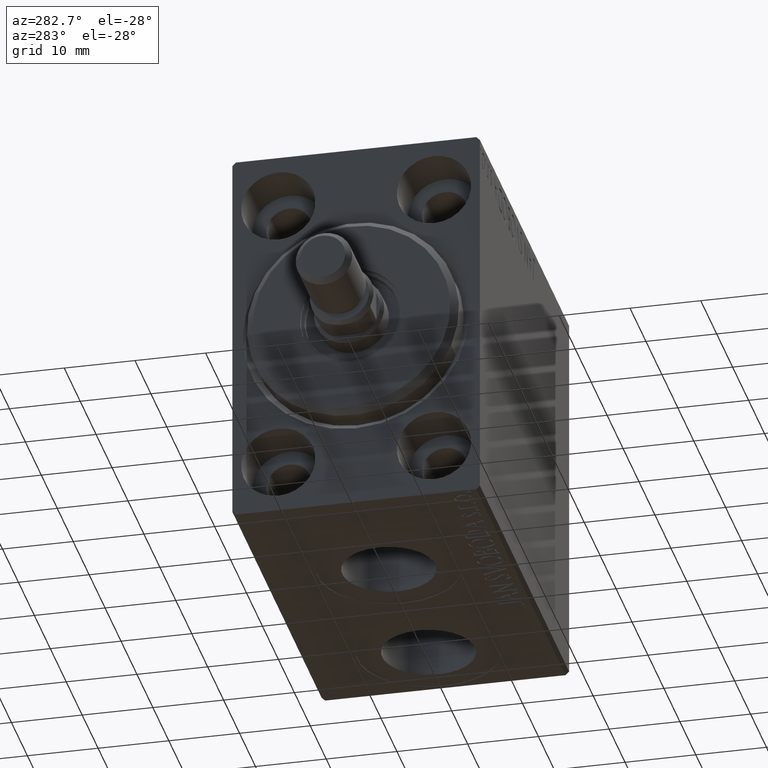
[diagram: clean part render]
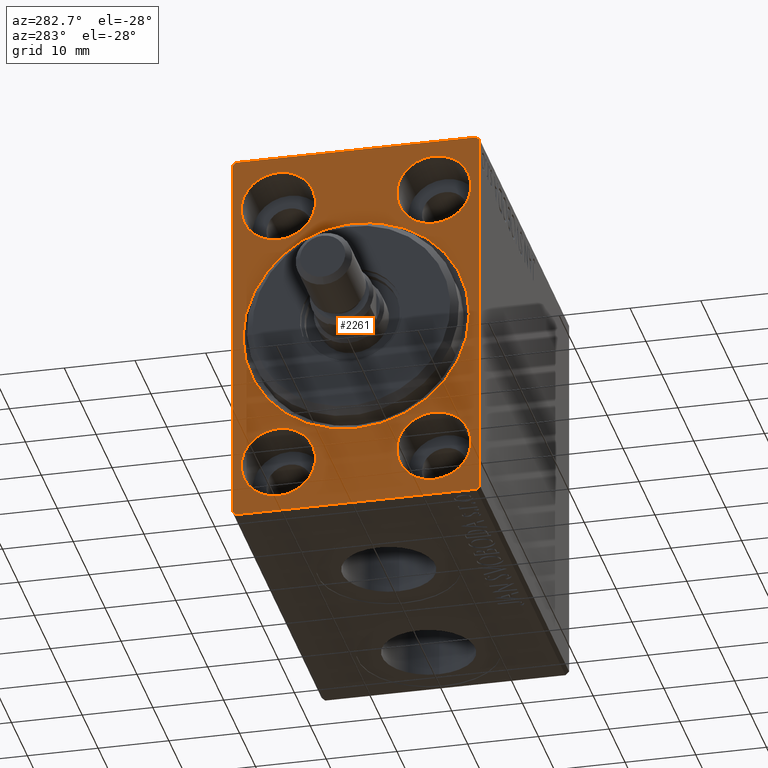
[diagram: same view with one face highlighted and labeled with its STEP entity id]
A machine part, auxiliary view. The second image highlights one B-rep face of the part: STEP entity #2261.
In plain terms, the highlighted planar face has unit normal (1, 0, 0).
Its self-contained STEP definition (entity closure, byte-faithful):
#36 = DIRECTION ( 'NONE',  ( -1.000000000000000000, 0.000000000000000000, 0.000000000000000000 ) ) ;
#77 = EDGE_LOOP ( 'NONE', ( #7892, #28040 ) ) ;
#152 = VERTEX_POINT ( 'NONE', #35269 ) ;
#344 = CARTESIAN_POINT ( 'NONE',  ( 0.000000000000000000, 11.00000000000000355, 25.25000000000000000 ) ) ;
#424 = CIRCLE ( 'NONE', #1858, 5.250000000000000888 ) ;
#1130 = CARTESIAN_POINT ( 'NONE',  ( 0.000000000000000000, 11.00000000000000355, -25.25000000000000000 ) ) ;
#1358 = ORIENTED_EDGE ( 'NONE', *, *, #43839, .T. ) ;
#1514 = LINE ( 'NONE', #5108, #15430 ) ;
#1816 = CARTESIAN_POINT ( 'NONE',  ( 0.000000000000000000, 17.50000000000000000, 26.99999999999999645 ) ) ;
#1856 = DIRECTION ( 'NONE',  ( 0.000000000000000000, 1.000000000000000000, 0.000000000000000000 ) ) ;
#1858 = AXIS2_PLACEMENT_3D ( 'NONE', #36558, #43735, #44183 ) ;
#1918 = EDGE_CURVE ( 'NONE', #3711, #13535, #41545, .T. ) ;
#2249 = EDGE_CURVE ( 'NONE', #38203, #37076, #13660, .T. ) ;
#2261 = ADVANCED_FACE ( 'NONE', ( #15786, #36733, #29527, #30187, #19596, #40777 ), #36949, .F. ) ;
#2523 = DIRECTION ( 'NONE',  ( -0.000000000000000000, 0.7071067811865474617, -0.7071067811865474617 ) ) ;
#2829 = DIRECTION ( 'NONE',  ( 0.000000000000000000, 0.000000000000000000, 1.000000000000000000 ) ) ;
#2866 = AXIS2_PLACEMENT_3D ( 'NONE', #27025, #16441, #39893 ) ;
#2890 = VECTOR ( 'NONE', #39435, 1000.000000000000114 ) ;
#3175 = VERTEX_POINT ( 'NONE', #20566 ) ;
#3711 = VERTEX_POINT ( 'NONE', #33987 ) ;
#3723 = CARTESIAN_POINT ( 'NONE',  ( 0.000000000000000000, -17.50000000000000000, 26.99999999999998934 ) ) ;
#3864 = LINE ( 'NONE', #31557, #10830 ) ;
#4059 = VERTEX_POINT ( 'NONE', #24171 ) ;
#4296 = ORIENTED_EDGE ( 'NONE', *, *, #7012, .T. ) ;
#4464 = EDGE_CURVE ( 'NONE', #3711, #4059, #3864, .T. ) ;
#4483 = CARTESIAN_POINT ( 'NONE',  ( 0.000000000000000000, 11.00000000000000355, 20.00000000000000000 ) ) ;
#5108 = CARTESIAN_POINT ( 'NONE',  ( 0.000000000000000000, -16.99999999999999289, -27.50000000000000355 ) ) ;
#5217 = ORIENTED_EDGE ( 'NONE', *, *, #23650, .F. ) ;
#5451 = LINE ( 'NONE', #18938, #11072 ) ;
#6100 = DIRECTION ( 'NONE',  ( 1.000000000000000000, 0.000000000000000000, 0.000000000000000000 ) ) ;
#6169 = ORIENTED_EDGE ( 'NONE', *, *, #41079, .F. ) ;
#6665 = EDGE_CURVE ( 'NONE', #30242, #21918, #30271, .T. ) ;
#6698 = CARTESIAN_POINT ( 'NONE',  ( 0.000000000000000000, -11.00000000000000355, 20.00000000000000000 ) ) ;
#6776 = CIRCLE ( 'NONE', #29060, 5.250000000000000888 ) ;
#6940 = AXIS2_PLACEMENT_3D ( 'NONE', #23881, #33360, #33595 ) ;
#7012 = EDGE_CURVE ( 'NONE', #37467, #30150, #36049, .T. ) ;
#7576 = CARTESIAN_POINT ( 'NONE',  ( 0.000000000000000000, 1.959434878635766709E-15, -16.00000000000001421 ) ) ;
#7767 = EDGE_CURVE ( 'NONE', #34844, #14637, #21575, .T. ) ;
#7892 = ORIENTED_EDGE ( 'NONE', *, *, #38292, .F. ) ;
#8063 = DIRECTION ( 'NONE',  ( 1.000000000000000000, 0.000000000000000000, 0.000000000000000000 ) ) ;
#8405 = DIRECTION ( 'NONE',  ( 0.000000000000000000, -1.261617073437677752E-16, 1.000000000000000000 ) ) ;
#8610 = CARTESIAN_POINT ( 'NONE',  ( 0.000000000000000000, 0.000000000000000000, 0.000000000000000000 ) ) ;
#8987 = DIRECTION ( 'NONE',  ( 0.000000000000000000, 0.000000000000000000, 1.000000000000000000 ) ) ;
#9048 = EDGE_LOOP ( 'NONE', ( #18920, #15689 ) ) ;
#9132 = ORIENTED_EDGE ( 'NONE', *, *, #34493, .F. ) ;
#9985 = ORIENTED_EDGE ( 'NONE', *, *, #19425, .F. ) ;
#10148 = CARTESIAN_POINT ( 'NONE',  ( 0.000000000000000000, 17.00000000000000711, -27.50000000000000355 ) ) ;
#10151 = CARTESIAN_POINT ( 'NONE',  ( 0.000000000000000000, -11.00000000000000355, -20.00000000000000000 ) ) ;
#10830 = VECTOR ( 'NONE', #28169, 1000.000000000000000 ) ;
#10858 = CARTESIAN_POINT ( 'NONE',  ( 0.000000000000000000, -16.99999999999999289, 27.49999999999999645 ) ) ;
#10935 = EDGE_CURVE ( 'NONE', #13245, #11777, #27426, .T. ) ;
#11072 = VECTOR ( 'NONE', #1856, 1000.000000000000000 ) ;
#11473 = CARTESIAN_POINT ( 'NONE',  ( 0.000000000000000000, -11.00000000000000355, 25.25000000000000000 ) ) ;
#11593 = ORIENTED_EDGE ( 'NONE', *, *, #16663, .T. ) ;
#11731 = AXIS2_PLACEMENT_3D ( 'NONE', #28110, #8063, #18179 ) ;
#11777 = VERTEX_POINT ( 'NONE', #7576 ) ;
#12300 = CARTESIAN_POINT ( 'NONE',  ( 0.000000000000000000, -11.00000000000000355, 14.75000000000000000 ) ) ;
#12928 = EDGE_LOOP ( 'NONE', ( #40331, #9132 ) ) ;
#13245 = VERTEX_POINT ( 'NONE', #20861 ) ;
#13535 = VERTEX_POINT ( 'NONE', #10858 ) ;
#13624 = CARTESIAN_POINT ( 'NONE',  ( 0.000000000000000000, 17.50000000000000000, 27.50000000000000355 ) ) ;
#13660 = CIRCLE ( 'NONE', #2866, 5.250000000000000888 ) ;
#13754 = DIRECTION ( 'NONE',  ( 0.000000000000000000, 0.000000000000000000, 1.000000000000000000 ) ) ;
#13849 = DIRECTION ( 'NONE',  ( -0.000000000000000000, 0.7071067811865474617, 0.7071067811865474617 ) ) ;
#14637 = VERTEX_POINT ( 'NONE', #1130 ) ;
#14715 = DIRECTION ( 'NONE',  ( 0.000000000000000000, 0.000000000000000000, 1.000000000000000000 ) ) ;
#15430 = VECTOR ( 'NONE', #32809, 1000.000000000000114 ) ;
#15466 = CIRCLE ( 'NONE', #6940, 5.250000000000000888 ) ;
#15514 = CARTESIAN_POINT ( 'NONE',  ( 0.000000000000000000, -11.00000000000000355, -20.00000000000000000 ) ) ;
#15689 = ORIENTED_EDGE ( 'NONE', *, *, #37766, .F. ) ;
#15786 = FACE_BOUND ( 'NONE', #28190, .T. ) ;
#15807 = DIRECTION ( 'NONE',  ( 1.000000000000000000, 0.000000000000000000, 0.000000000000000000 ) ) ;
#16441 = DIRECTION ( 'NONE',  ( -1.000000000000000000, 0.000000000000000000, 0.000000000000000000 ) ) ;
#16628 = AXIS2_PLACEMENT_3D ( 'NONE', #8610, #15807, #43278 ) ;
#16663 = EDGE_CURVE ( 'NONE', #11777, #13245, #29716, .T. ) ;
#17249 = AXIS2_PLACEMENT_3D ( 'NONE', #33343, #6100, #33576 ) ;
#17386 = VERTEX_POINT ( 'NONE', #1816 ) ;
#17655 = AXIS2_PLACEMENT_3D ( 'NONE', #4483, #42735, #21580 ) ;
#18114 = EDGE_LOOP ( 'NONE', ( #35181, #41710, #9985, #1358, #39130, #4296, #5217, #19378 ) ) ;
#18179 = DIRECTION ( 'NONE',  ( 0.000000000000000000, 0.000000000000000000, -1.000000000000000000 ) ) ;
#18920 = ORIENTED_EDGE ( 'NONE', *, *, #7767, .F. ) ;
#18938 = CARTESIAN_POINT ( 'NONE',  ( 0.000000000000000000, -17.50000000000000000, -27.50000000000000355 ) ) ;
#19378 = ORIENTED_EDGE ( 'NONE', *, *, #21171, .T. ) ;
#19425 = EDGE_CURVE ( 'NONE', #3175, #13535, #37950, .T. ) ;
#19596 = FACE_BOUND ( 'NONE', #12928, .T. ) ;
#20566 = CARTESIAN_POINT ( 'NONE',  ( 0.000000000000000000, 16.99999999999999289, 27.50000000000000355 ) ) ;
#20861 = CARTESIAN_POINT ( 'NONE',  ( 0.000000000000000000, 0.000000000000000000, 16.00000000000001421 ) ) ;
#21171 = EDGE_CURVE ( 'NONE', #152, #4059, #1514, .T. ) ;
#21575 = CIRCLE ( 'NONE', #30201, 5.250000000000000888 ) ;
#21580 = DIRECTION ( 'NONE',  ( 0.000000000000000000, 0.000000000000000000, 1.000000000000000000 ) ) ;
#21893 = LINE ( 'NONE', #25947, #32766 ) ;
#21910 = CIRCLE ( 'NONE', #40606, 5.250000000000000888 ) ;
#21918 = VERTEX_POINT ( 'NONE', #12300 ) ;
#22511 = CARTESIAN_POINT ( 'NONE',  ( 0.000000000000000000, 17.50000000000000711, -27.00000000000000355 ) ) ;
#22928 = DIRECTION ( 'NONE',  ( -1.000000000000000000, 0.000000000000000000, 0.000000000000000000 ) ) ;
#23650 = EDGE_CURVE ( 'NONE', #152, #30150, #5451, .T. ) ;
#23782 = ORIENTED_EDGE ( 'NONE', *, *, #10935, .T. ) ;
#23881 = CARTESIAN_POINT ( 'NONE',  ( 0.000000000000000000, -11.00000000000000355, 20.00000000000000000 ) ) ;
#24171 = CARTESIAN_POINT ( 'NONE',  ( 0.000000000000000000, -17.50000000000000000, -26.99999999999999645 ) ) ;
#25830 = EDGE_CURVE ( 'NONE', #40115, #26320, #21910, .T. ) ;
#25947 = CARTESIAN_POINT ( 'NONE',  ( 0.000000000000000000, 17.50000000000000711, -27.50000000000000355 ) ) ;
#26320 = VERTEX_POINT ( 'NONE', #32084 ) ;
#27025 = CARTESIAN_POINT ( 'NONE',  ( 0.000000000000000000, 11.00000000000000355, 20.00000000000000000 ) ) ;
#27426 = CIRCLE ( 'NONE', #16628, 16.00000000000001421 ) ;
#27467 = EDGE_CURVE ( 'NONE', #37467, #17386, #21893, .T. ) ;
#28040 = ORIENTED_EDGE ( 'NONE', *, *, #2249, .F. ) ;
#28110 = CARTESIAN_POINT ( 'NONE',  ( 0.000000000000000000, 0.000000000000000000, 0.000000000000000000 ) ) ;
#28169 = DIRECTION ( 'NONE',  ( 0.000000000000000000, 0.000000000000000000, -1.000000000000000000 ) ) ;
#28190 = EDGE_LOOP ( 'NONE', ( #23782, #11593 ) ) ;
#28971 = ORIENTED_EDGE ( 'NONE', *, *, #6665, .F. ) ;
#29060 = AXIS2_PLACEMENT_3D ( 'NONE', #10151, #36, #13754 ) ;
#29527 = FACE_BOUND ( 'NONE', #44150, .T. ) ;
#29716 = CIRCLE ( 'NONE', #11731, 16.00000000000001421 ) ;
#30150 = VERTEX_POINT ( 'NONE', #10148 ) ;
#30187 = FACE_BOUND ( 'NONE', #77, .T. ) ;
#30201 = AXIS2_PLACEMENT_3D ( 'NONE', #33003, #36609, #2829 ) ;
#30242 = VERTEX_POINT ( 'NONE', #11473 ) ;
#30271 = CIRCLE ( 'NONE', #38192, 5.250000000000000888 ) ;
#31557 = CARTESIAN_POINT ( 'NONE',  ( 0.000000000000000000, -17.50000000000000000, 27.49999999999999645 ) ) ;
#32064 = VECTOR ( 'NONE', #2523, 1000.000000000000114 ) ;
#32084 = CARTESIAN_POINT ( 'NONE',  ( 0.000000000000000000, -11.00000000000000355, -25.25000000000000000 ) ) ;
#32766 = VECTOR ( 'NONE', #8405, 1000.000000000000000 ) ;
#32809 = DIRECTION ( 'NONE',  ( -0.000000000000000000, -0.7071067811865474617, 0.7071067811865474617 ) ) ;
#33003 = CARTESIAN_POINT ( 'NONE',  ( 0.000000000000000000, 11.00000000000000355, -20.00000000000000000 ) ) ;
#33343 = CARTESIAN_POINT ( 'NONE',  ( 0.000000000000000000, 0.000000000000000000, 0.000000000000000000 ) ) ;
#33360 = DIRECTION ( 'NONE',  ( -1.000000000000000000, 0.000000000000000000, 0.000000000000000000 ) ) ;
#33576 = DIRECTION ( 'NONE',  ( 0.000000000000000000, 0.000000000000000000, -1.000000000000000000 ) ) ;
#33595 = DIRECTION ( 'NONE',  ( 0.000000000000000000, 0.000000000000000000, 1.000000000000000000 ) ) ;
#33987 = CARTESIAN_POINT ( 'NONE',  ( 0.000000000000000000, -17.50000000000000000, 26.99999999999998934 ) ) ;
#34091 = VECTOR ( 'NONE', #34788, 1000.000000000000000 ) ;
#34493 = EDGE_CURVE ( 'NONE', #26320, #40115, #6776, .T. ) ;
#34788 = DIRECTION ( 'NONE',  ( 0.000000000000000000, -1.000000000000000000, -1.982541115402065110E-16 ) ) ;
#34844 = VERTEX_POINT ( 'NONE', #40287 ) ;
#35181 = ORIENTED_EDGE ( 'NONE', *, *, #4464, .F. ) ;
#35269 = CARTESIAN_POINT ( 'NONE',  ( 0.000000000000000000, -16.99999999999999289, -27.50000000000000355 ) ) ;
#36049 = LINE ( 'NONE', #22511, #2890 ) ;
#36558 = CARTESIAN_POINT ( 'NONE',  ( 0.000000000000000000, 11.00000000000000355, -20.00000000000000000 ) ) ;
#36609 = DIRECTION ( 'NONE',  ( -1.000000000000000000, 0.000000000000000000, 0.000000000000000000 ) ) ;
#36673 = VECTOR ( 'NONE', #13849, 1000.000000000000114 ) ;
#36733 = FACE_BOUND ( 'NONE', #9048, .T. ) ;
#36949 = PLANE ( 'NONE',  #17249 ) ;
#37076 = VERTEX_POINT ( 'NONE', #344 ) ;
#37467 = VERTEX_POINT ( 'NONE', #40214 ) ;
#37766 = EDGE_CURVE ( 'NONE', #14637, #34844, #424, .T. ) ;
#37950 = LINE ( 'NONE', #13624, #34091 ) ;
#38192 = AXIS2_PLACEMENT_3D ( 'NONE', #6698, #41139, #14715 ) ;
#38203 = VERTEX_POINT ( 'NONE', #38277 ) ;
#38277 = CARTESIAN_POINT ( 'NONE',  ( 0.000000000000000000, 11.00000000000000355, 14.75000000000000000 ) ) ;
#38292 = EDGE_CURVE ( 'NONE', #37076, #38203, #39983, .T. ) ;
#38806 = LINE ( 'NONE', #44161, #32064 ) ;
#39130 = ORIENTED_EDGE ( 'NONE', *, *, #27467, .F. ) ;
#39435 = DIRECTION ( 'NONE',  ( 0.000000000000000000, -0.7071067811865474617, -0.7071067811865474617 ) ) ;
#39893 = DIRECTION ( 'NONE',  ( 0.000000000000000000, 0.000000000000000000, 1.000000000000000000 ) ) ;
#39983 = CIRCLE ( 'NONE', #17655, 5.250000000000000888 ) ;
#40115 = VERTEX_POINT ( 'NONE', #44319 ) ;
#40214 = CARTESIAN_POINT ( 'NONE',  ( 0.000000000000000000, 17.50000000000000711, -27.00000000000000355 ) ) ;
#40287 = CARTESIAN_POINT ( 'NONE',  ( 0.000000000000000000, 11.00000000000000355, -14.75000000000000000 ) ) ;
#40331 = ORIENTED_EDGE ( 'NONE', *, *, #25830, .F. ) ;
#40606 = AXIS2_PLACEMENT_3D ( 'NONE', #15514, #22928, #8987 ) ;
#40777 = FACE_OUTER_BOUND ( 'NONE', #18114, .T. ) ;
#41079 = EDGE_CURVE ( 'NONE', #21918, #30242, #15466, .T. ) ;
#41139 = DIRECTION ( 'NONE',  ( -1.000000000000000000, 0.000000000000000000, 0.000000000000000000 ) ) ;
#41545 = LINE ( 'NONE', #3723, #36673 ) ;
#41710 = ORIENTED_EDGE ( 'NONE', *, *, #1918, .T. ) ;
#42735 = DIRECTION ( 'NONE',  ( -1.000000000000000000, 0.000000000000000000, 0.000000000000000000 ) ) ;
#43278 = DIRECTION ( 'NONE',  ( 0.000000000000000000, 0.000000000000000000, -1.000000000000000000 ) ) ;
#43735 = DIRECTION ( 'NONE',  ( -1.000000000000000000, 0.000000000000000000, 0.000000000000000000 ) ) ;
#43839 = EDGE_CURVE ( 'NONE', #3175, #17386, #38806, .T. ) ;
#44150 = EDGE_LOOP ( 'NONE', ( #28971, #6169 ) ) ;
#44161 = CARTESIAN_POINT ( 'NONE',  ( 0.000000000000000000, 16.99999999999999289, 27.50000000000000355 ) ) ;
#44183 = DIRECTION ( 'NONE',  ( 0.000000000000000000, 0.000000000000000000, 1.000000000000000000 ) ) ;
#44319 = CARTESIAN_POINT ( 'NONE',  ( 0.000000000000000000, -11.00000000000000355, -14.75000000000000000 ) ) ;